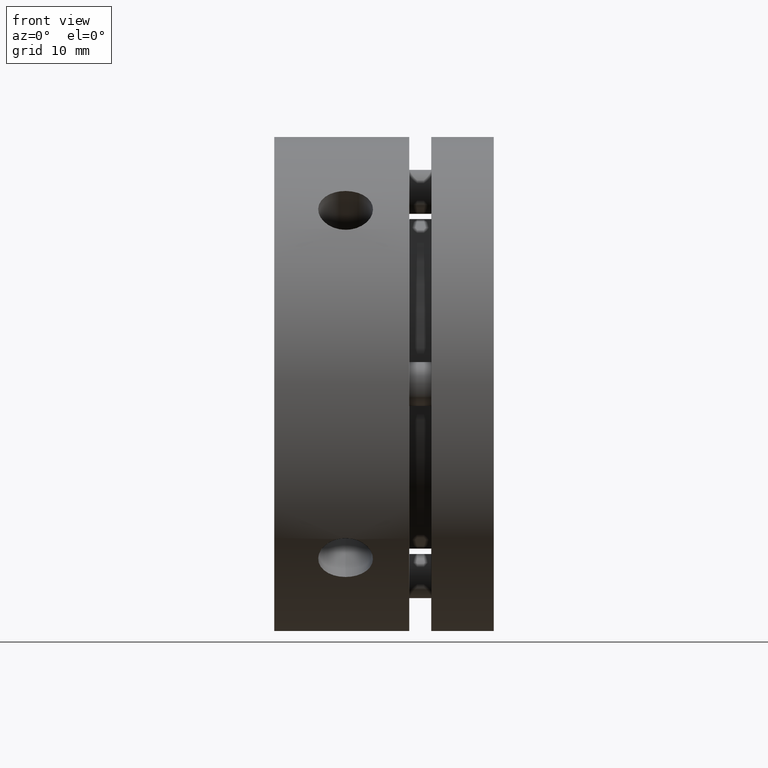
[diagram: clean part render]
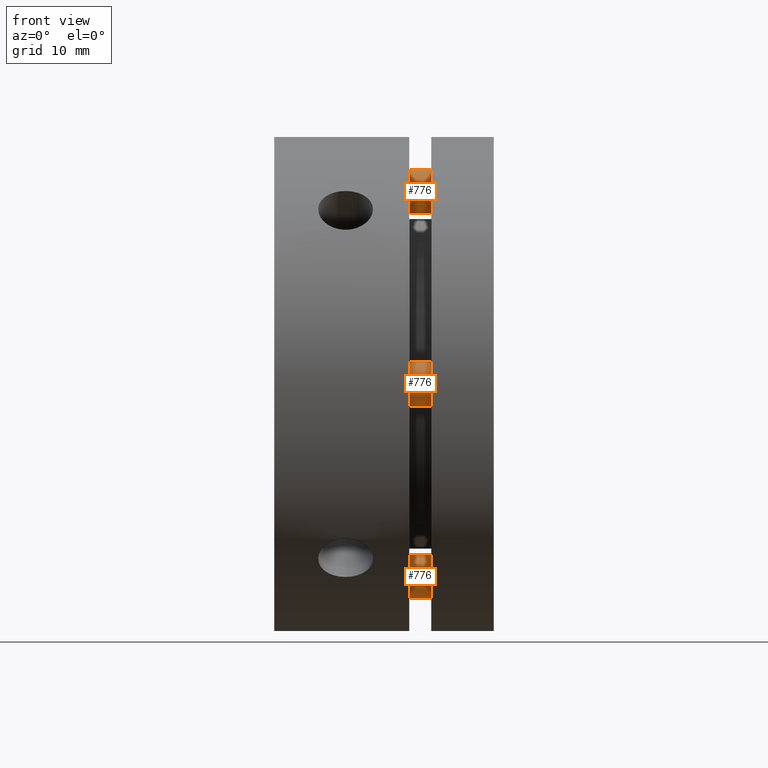
[diagram: same view with one multi-face feature highlighted, each face labeled with its STEP entity id]
A machine part, front view. The highlighted faces form ONE feature: a constant-radius fillet chain: 3 tangent blend faces with common blend radius 2 mm. The faces share edges in the B-rep.
Their STEP definitions:
[1] entity #776 (Cylinder):
#135 = EDGE_LOOP ( 'NONE', ( #1158, #1159, #1160, #1161 ) ) ;
#567 = VERTEX_POINT ( 'NONE', #2496 ) ;
#570 = VERTEX_POINT ( 'NONE', #2499 ) ;
#573 = VERTEX_POINT ( 'NONE', #2502 ) ;
#574 = VERTEX_POINT ( 'NONE', #2503 ) ;
#776 = ADVANCED_FACE ( 'NONE', ( #3066 ), #3073, .T. ) ;
#909 = EDGE_CURVE ( 'NONE', #567, #573, #3226, .T. ) ;
#910 = EDGE_CURVE ( 'NONE', #567, #570, #3214, .T. ) ;
#911 = EDGE_CURVE ( 'NONE', #573, #574, #3227, .T. ) ;
#912 = EDGE_CURVE ( 'NONE', #570, #574, #3230, .T. ) ;
#1158 = ORIENTED_EDGE ( 'NONE', *, *, #910, .F. ) ;
#1159 = ORIENTED_EDGE ( 'NONE', *, *, #909, .T. ) ;
#1160 = ORIENTED_EDGE ( 'NONE', *, *, #911, .T. ) ;
#1161 = ORIENTED_EDGE ( 'NONE', *, *, #912, .F. ) ;
#1353 = AXIS2_PLACEMENT_3D ( 'NONE', #2701, #2699, #2698 ) ;
#1444 = AXIS2_PLACEMENT_3D ( 'NONE', #3379, #3380, #3381 ) ;
#1445 = AXIS2_PLACEMENT_3D ( 'NONE', #3382, #3383, #3384 ) ;
#2496 = CARTESIAN_POINT ( 'NONE',  ( 2.449293598294706400E-016, -14.00000000000000000, -2.000000000000000000 ) ) ;
#2499 = CARTESIAN_POINT ( 'NONE',  ( 0.0000000000000000000, -14.00000000000000000, 2.000000000000000000 ) ) ;
#2502 = CARTESIAN_POINT ( 'NONE',  ( 2.449293598294706400E-016, 0.0000000000000000000, -2.000000000000000000 ) ) ;
#2503 = CARTESIAN_POINT ( 'NONE',  ( 0.0000000000000000000, 0.0000000000000000000, 2.000000000000000000 ) ) ;
#2698 = DIRECTION ( 'NONE',  ( 0.0000000000000000000, 0.0000000000000000000, 1.000000000000000000 ) ) ;
#2699 = DIRECTION ( 'NONE',  ( -0.0000000000000000000, 1.000000000000000000, -0.0000000000000000000 ) ) ;
#2701 = CARTESIAN_POINT ( 'NONE',  ( 0.0000000000000000000, -14.00000000000000000, 0.0000000000000000000 ) ) ;
#3066 = FACE_OUTER_BOUND ( 'NONE', #135, .T. ) ;
#3073 = CYLINDRICAL_SURFACE ( 'NONE', #1353, 2.000000000000000000 ) ;
#3214 = CIRCLE ( 'NONE', #1444, 2.000000000000000000 ) ;
#3226 = LINE ( 'NONE', #3341, #3228 ) ;
#3227 = CIRCLE ( 'NONE', #1445, 2.000000000000000000 ) ;
#3228 = VECTOR ( 'NONE', #3340, 1000.000000000000000 ) ;
#3230 = LINE ( 'NONE', #3377, #3232 ) ;
#3232 = VECTOR ( 'NONE', #3378, 1000.000000000000000 ) ;
#3340 = DIRECTION ( 'NONE',  ( -0.0000000000000000000, 1.000000000000000000, -0.0000000000000000000 ) ) ;
#3341 = CARTESIAN_POINT ( 'NONE',  ( 2.449293598294706400E-016, -14.00000000000000000, -2.000000000000000000 ) ) ;
#3377 = CARTESIAN_POINT ( 'NONE',  ( 0.0000000000000000000, -14.00000000000000000, 2.000000000000000000 ) ) ;
#3378 = DIRECTION ( 'NONE',  ( -0.0000000000000000000, 1.000000000000000000, -0.0000000000000000000 ) ) ;
#3379 = CARTESIAN_POINT ( 'NONE',  ( 0.0000000000000000000, -14.00000000000000000, 0.0000000000000000000 ) ) ;
#3380 = DIRECTION ( 'NONE',  ( 0.0000000000000000000, -1.000000000000000000, 0.0000000000000000000 ) ) ;
#3381 = DIRECTION ( 'NONE',  ( 0.0000000000000000000, 0.0000000000000000000, -1.000000000000000000 ) ) ;
#3382 = CARTESIAN_POINT ( 'NONE',  ( 0.0000000000000000000, 0.0000000000000000000, 0.0000000000000000000 ) ) ;
#3383 = DIRECTION ( 'NONE',  ( -0.0000000000000000000, -1.000000000000000000, -0.0000000000000000000 ) ) ;
#3384 = DIRECTION ( 'NONE',  ( 0.0000000000000000000, 0.0000000000000000000, 1.000000000000000000 ) ) ;
[2] entity #776 (Cylinder):
#135 = EDGE_LOOP ( 'NONE', ( #1158, #1159, #1160, #1161 ) ) ;
#567 = VERTEX_POINT ( 'NONE', #2496 ) ;
#570 = VERTEX_POINT ( 'NONE', #2499 ) ;
#573 = VERTEX_POINT ( 'NONE', #2502 ) ;
#574 = VERTEX_POINT ( 'NONE', #2503 ) ;
#776 = ADVANCED_FACE ( 'NONE', ( #3066 ), #3073, .T. ) ;
#909 = EDGE_CURVE ( 'NONE', #567, #573, #3226, .T. ) ;
#910 = EDGE_CURVE ( 'NONE', #567, #570, #3214, .T. ) ;
#911 = EDGE_CURVE ( 'NONE', #573, #574, #3227, .T. ) ;
#912 = EDGE_CURVE ( 'NONE', #570, #574, #3230, .T. ) ;
#1158 = ORIENTED_EDGE ( 'NONE', *, *, #910, .F. ) ;
#1159 = ORIENTED_EDGE ( 'NONE', *, *, #909, .T. ) ;
#1160 = ORIENTED_EDGE ( 'NONE', *, *, #911, .T. ) ;
#1161 = ORIENTED_EDGE ( 'NONE', *, *, #912, .F. ) ;
#1353 = AXIS2_PLACEMENT_3D ( 'NONE', #2701, #2699, #2698 ) ;
#1444 = AXIS2_PLACEMENT_3D ( 'NONE', #3379, #3380, #3381 ) ;
#1445 = AXIS2_PLACEMENT_3D ( 'NONE', #3382, #3383, #3384 ) ;
#2496 = CARTESIAN_POINT ( 'NONE',  ( 2.449293598294706400E-016, -14.00000000000000000, -2.000000000000000000 ) ) ;
#2499 = CARTESIAN_POINT ( 'NONE',  ( 0.0000000000000000000, -14.00000000000000000, 2.000000000000000000 ) ) ;
#2502 = CARTESIAN_POINT ( 'NONE',  ( 2.449293598294706400E-016, 0.0000000000000000000, -2.000000000000000000 ) ) ;
#2503 = CARTESIAN_POINT ( 'NONE',  ( 0.0000000000000000000, 0.0000000000000000000, 2.000000000000000000 ) ) ;
#2698 = DIRECTION ( 'NONE',  ( 0.0000000000000000000, 0.0000000000000000000, 1.000000000000000000 ) ) ;
#2699 = DIRECTION ( 'NONE',  ( -0.0000000000000000000, 1.000000000000000000, -0.0000000000000000000 ) ) ;
#2701 = CARTESIAN_POINT ( 'NONE',  ( 0.0000000000000000000, -14.00000000000000000, 0.0000000000000000000 ) ) ;
#3066 = FACE_OUTER_BOUND ( 'NONE', #135, .T. ) ;
#3073 = CYLINDRICAL_SURFACE ( 'NONE', #1353, 2.000000000000000000 ) ;
#3214 = CIRCLE ( 'NONE', #1444, 2.000000000000000000 ) ;
#3226 = LINE ( 'NONE', #3341, #3228 ) ;
#3227 = CIRCLE ( 'NONE', #1445, 2.000000000000000000 ) ;
#3228 = VECTOR ( 'NONE', #3340, 1000.000000000000000 ) ;
#3230 = LINE ( 'NONE', #3377, #3232 ) ;
#3232 = VECTOR ( 'NONE', #3378, 1000.000000000000000 ) ;
#3340 = DIRECTION ( 'NONE',  ( -0.0000000000000000000, 1.000000000000000000, -0.0000000000000000000 ) ) ;
#3341 = CARTESIAN_POINT ( 'NONE',  ( 2.449293598294706400E-016, -14.00000000000000000, -2.000000000000000000 ) ) ;
#3377 = CARTESIAN_POINT ( 'NONE',  ( 0.0000000000000000000, -14.00000000000000000, 2.000000000000000000 ) ) ;
#3378 = DIRECTION ( 'NONE',  ( -0.0000000000000000000, 1.000000000000000000, -0.0000000000000000000 ) ) ;
#3379 = CARTESIAN_POINT ( 'NONE',  ( 0.0000000000000000000, -14.00000000000000000, 0.0000000000000000000 ) ) ;
#3380 = DIRECTION ( 'NONE',  ( 0.0000000000000000000, -1.000000000000000000, 0.0000000000000000000 ) ) ;
#3381 = DIRECTION ( 'NONE',  ( 0.0000000000000000000, 0.0000000000000000000, -1.000000000000000000 ) ) ;
#3382 = CARTESIAN_POINT ( 'NONE',  ( 0.0000000000000000000, 0.0000000000000000000, 0.0000000000000000000 ) ) ;
#3383 = DIRECTION ( 'NONE',  ( -0.0000000000000000000, -1.000000000000000000, -0.0000000000000000000 ) ) ;
#3384 = DIRECTION ( 'NONE',  ( 0.0000000000000000000, 0.0000000000000000000, 1.000000000000000000 ) ) ;
[3] entity #776 (Cylinder):
#135 = EDGE_LOOP ( 'NONE', ( #1158, #1159, #1160, #1161 ) ) ;
#567 = VERTEX_POINT ( 'NONE', #2496 ) ;
#570 = VERTEX_POINT ( 'NONE', #2499 ) ;
#573 = VERTEX_POINT ( 'NONE', #2502 ) ;
#574 = VERTEX_POINT ( 'NONE', #2503 ) ;
#776 = ADVANCED_FACE ( 'NONE', ( #3066 ), #3073, .T. ) ;
#909 = EDGE_CURVE ( 'NONE', #567, #573, #3226, .T. ) ;
#910 = EDGE_CURVE ( 'NONE', #567, #570, #3214, .T. ) ;
#911 = EDGE_CURVE ( 'NONE', #573, #574, #3227, .T. ) ;
#912 = EDGE_CURVE ( 'NONE', #570, #574, #3230, .T. ) ;
#1158 = ORIENTED_EDGE ( 'NONE', *, *, #910, .F. ) ;
#1159 = ORIENTED_EDGE ( 'NONE', *, *, #909, .T. ) ;
#1160 = ORIENTED_EDGE ( 'NONE', *, *, #911, .T. ) ;
#1161 = ORIENTED_EDGE ( 'NONE', *, *, #912, .F. ) ;
#1353 = AXIS2_PLACEMENT_3D ( 'NONE', #2701, #2699, #2698 ) ;
#1444 = AXIS2_PLACEMENT_3D ( 'NONE', #3379, #3380, #3381 ) ;
#1445 = AXIS2_PLACEMENT_3D ( 'NONE', #3382, #3383, #3384 ) ;
#2496 = CARTESIAN_POINT ( 'NONE',  ( 2.449293598294706400E-016, -14.00000000000000000, -2.000000000000000000 ) ) ;
#2499 = CARTESIAN_POINT ( 'NONE',  ( 0.0000000000000000000, -14.00000000000000000, 2.000000000000000000 ) ) ;
#2502 = CARTESIAN_POINT ( 'NONE',  ( 2.449293598294706400E-016, 0.0000000000000000000, -2.000000000000000000 ) ) ;
#2503 = CARTESIAN_POINT ( 'NONE',  ( 0.0000000000000000000, 0.0000000000000000000, 2.000000000000000000 ) ) ;
#2698 = DIRECTION ( 'NONE',  ( 0.0000000000000000000, 0.0000000000000000000, 1.000000000000000000 ) ) ;
#2699 = DIRECTION ( 'NONE',  ( -0.0000000000000000000, 1.000000000000000000, -0.0000000000000000000 ) ) ;
#2701 = CARTESIAN_POINT ( 'NONE',  ( 0.0000000000000000000, -14.00000000000000000, 0.0000000000000000000 ) ) ;
#3066 = FACE_OUTER_BOUND ( 'NONE', #135, .T. ) ;
#3073 = CYLINDRICAL_SURFACE ( 'NONE', #1353, 2.000000000000000000 ) ;
#3214 = CIRCLE ( 'NONE', #1444, 2.000000000000000000 ) ;
#3226 = LINE ( 'NONE', #3341, #3228 ) ;
#3227 = CIRCLE ( 'NONE', #1445, 2.000000000000000000 ) ;
#3228 = VECTOR ( 'NONE', #3340, 1000.000000000000000 ) ;
#3230 = LINE ( 'NONE', #3377, #3232 ) ;
#3232 = VECTOR ( 'NONE', #3378, 1000.000000000000000 ) ;
#3340 = DIRECTION ( 'NONE',  ( -0.0000000000000000000, 1.000000000000000000, -0.0000000000000000000 ) ) ;
#3341 = CARTESIAN_POINT ( 'NONE',  ( 2.449293598294706400E-016, -14.00000000000000000, -2.000000000000000000 ) ) ;
#3377 = CARTESIAN_POINT ( 'NONE',  ( 0.0000000000000000000, -14.00000000000000000, 2.000000000000000000 ) ) ;
#3378 = DIRECTION ( 'NONE',  ( -0.0000000000000000000, 1.000000000000000000, -0.0000000000000000000 ) ) ;
#3379 = CARTESIAN_POINT ( 'NONE',  ( 0.0000000000000000000, -14.00000000000000000, 0.0000000000000000000 ) ) ;
#3380 = DIRECTION ( 'NONE',  ( 0.0000000000000000000, -1.000000000000000000, 0.0000000000000000000 ) ) ;
#3381 = DIRECTION ( 'NONE',  ( 0.0000000000000000000, 0.0000000000000000000, -1.000000000000000000 ) ) ;
#3382 = CARTESIAN_POINT ( 'NONE',  ( 0.0000000000000000000, 0.0000000000000000000, 0.0000000000000000000 ) ) ;
#3383 = DIRECTION ( 'NONE',  ( -0.0000000000000000000, -1.000000000000000000, -0.0000000000000000000 ) ) ;
#3384 = DIRECTION ( 'NONE',  ( 0.0000000000000000000, 0.0000000000000000000, 1.000000000000000000 ) ) ;